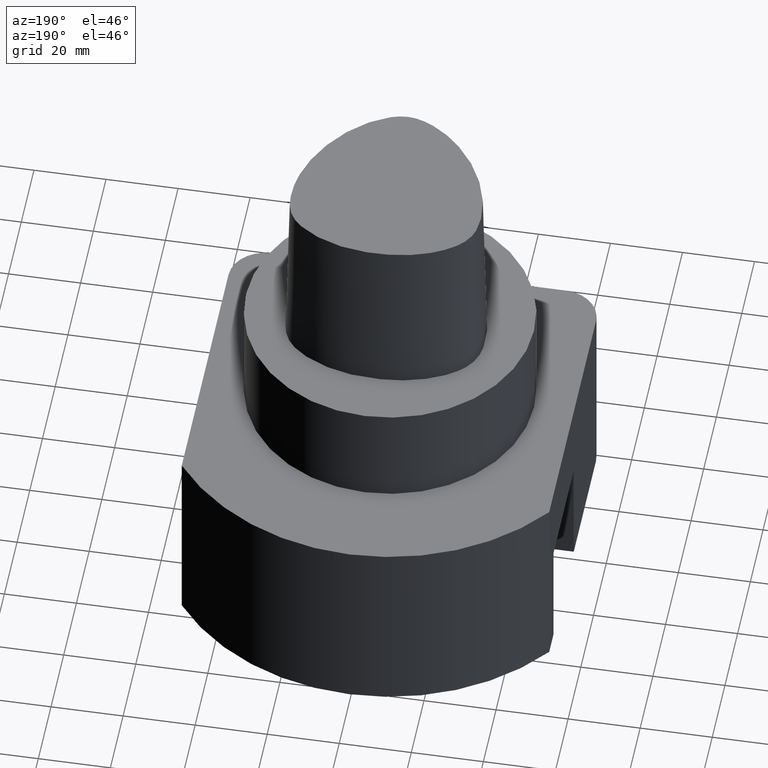
[diagram: clean part render]
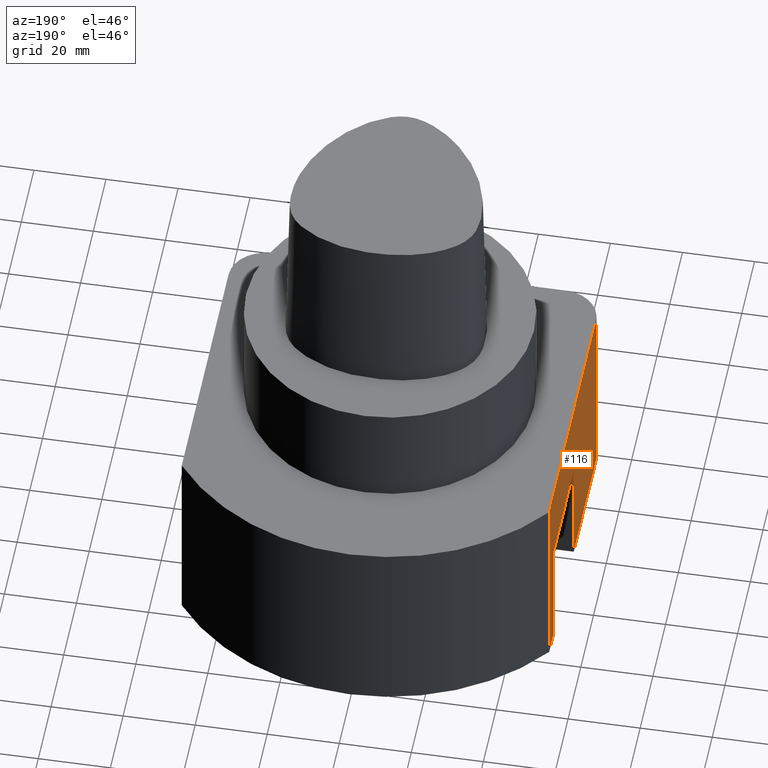
[diagram: same view with one face highlighted and labeled with its STEP entity id]
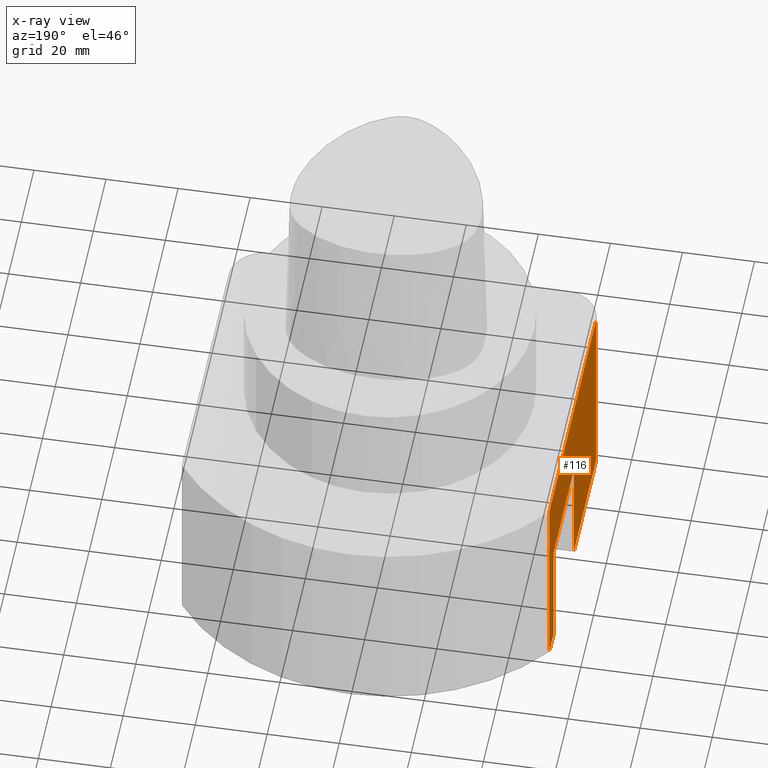
[diagram: x-ray of the same camera — body ghosted, the highlighted face saturated]
A machine part, auxiliary view. The second image highlights one B-rep face of the part: STEP entity #116.
The next image is the same camera in x-ray: the body ghosted, the highlighted face saturated — about 0% of this face is hidden behind the body in this view.
In plain terms, the highlighted planar face has unit normal (-1, 0, -0).
Its self-contained STEP definition (entity closure, byte-faithful):
#98=EDGE_CURVE('240[2]',#246,#252,#253,.T.);
#108=EDGE_CURVE('240[2]',#267,#268,#269,.T.);
#116=ADVANCED_FACE('240[2]',(#279),#280,.T.);
#123=EDGE_CURVE('240[2]',#290,#252,#291,.T.);
#127=EDGE_CURVE('240[2]',#271,#296,#297,.T.);
#150=EDGE_CURVE('240[2]',#290,#300,#331,.T.);
#204=EDGE_CURVE('240[2]',#271,#267,#396,.T.);
#206=EDGE_CURVE('240[2]',#300,#268,#398,.T.);
#208=EDGE_CURVE('240[2]',#296,#246,#400,.T.);
#246=VERTEX_POINT('',#436);
#252=VERTEX_POINT('',#444);
#253=LINE('',#445,#446);
#267=VERTEX_POINT('',#465);
#268=VERTEX_POINT('',#466);
#269=LINE('',#467,#468);
#271=VERTEX_POINT('',#471);
#279=FACE_OUTER_BOUND('',#482,.T.);
#280=PLANE('',#483);
#290=VERTEX_POINT('',#544);
#291=LINE('',#545,#546);
#296=VERTEX_POINT('',#553);
#297=LINE('',#554,#555);
#300=VERTEX_POINT('',#559);
#331=LINE('',#608,#609);
#396=LINE('',#1184,#1185);
#398=LINE('',#1188,#1189);
#400=LINE('',#1192,#1193);
#436=CARTESIAN_POINT('',(-50.9999999562171,-1.15153080469822E-015,-53.0));
#444=CARTESIAN_POINT('',(-50.9999999562171,-3.11096568333399E-015,-85.0));
#445=CARTESIAN_POINT('',(-50.9999999562171,-5.98888566133027E-015,-132.0));
#446=VECTOR('',#1220,1.0);
#465=CARTESIAN_POINT('',(-50.9999999078492,38.6652299799105,-85.0));
#466=CARTESIAN_POINT('',(-50.9999999078492,38.6652299799106,-30.0));
#467=CARTESIAN_POINT('',(-50.9999999078492,38.6652299799106,-53.0));
#468=VECTOR('',#1245,1.0);
#471=CARTESIAN_POINT('',(-50.999999916187,32.0,-85.0));
#482=EDGE_LOOP('',(#1256,#1257,#1258,#1259,#1260,#1261,#1262,#1263));
#483=AXIS2_PLACEMENT_3D('',#1264,#1265,#1266);
#544=CARTESIAN_POINT('',(-51.0,-34.99999999,-85.0));
#545=CARTESIAN_POINT('',(-51.0,-34.99999999,-85.0));
#546=VECTOR('',#1279,1.0);
#553=CARTESIAN_POINT('',(-50.999999916187,32.0,-53.0));
#554=CARTESIAN_POINT('',(-50.999999916187,32.0,-132.0));
#555=VECTOR('',#1283,1.0);
#559=CARTESIAN_POINT('',(-51.0,-34.99999999,-30.0));
#608=CARTESIAN_POINT('',(-51.0,-34.99999999,-76.0));
#609=VECTOR('',#1306,0.71875);
#1184=CARTESIAN_POINT('',(-51.0,-34.99999999,-85.0));
#1185=VECTOR('',#1385,1.0);
#1188=CARTESIAN_POINT('',(-51.0,-34.99999999,-30.0));
#1189=VECTOR('',#1386,1.0);
#1192=CARTESIAN_POINT('',(-50.9999999556085,0.486476665926136,-53.0));
#1193=VECTOR('',#1387,1.0);
#1220=DIRECTION('',(1.22464679914735E-016,-6.12323399573677E-017,-1.0));
#1245=DIRECTION('',(-1.25054175000161E-026,9.67191411602549E-016,1.0));
#1256=ORIENTED_EDGE('',*,*,#208,.T.);
#1257=ORIENTED_EDGE('',*,*,#98,.T.);
#1258=ORIENTED_EDGE('',*,*,#123,.F.);
#1259=ORIENTED_EDGE('',*,*,#150,.T.);
#1260=ORIENTED_EDGE('',*,*,#206,.T.);
#1261=ORIENTED_EDGE('',*,*,#108,.F.);
#1262=ORIENTED_EDGE('',*,*,#204,.F.);
#1263=ORIENTED_EDGE('',*,*,#127,.T.);
#1264=CARTESIAN_POINT('',(-50.99999991,36.9459065261087,-53.0));
#1265=DIRECTION('',(-1.0,1.25094011638275E-009,-1.70385641735264E-016));
#1266=DIRECTION('',(-1.70385641735264E-016,0.0,1.0));
#1279=DIRECTION('',(1.25094011638275E-009,1.0,-6.12323398041717E-017));
#1283=DIRECTION('',(-1.22464679914735E-016,6.12323399573677E-017,1.0));
#1306=DIRECTION('',(-1.25052631576651E-026,2.82200504946853E-016,1.0));
#1385=DIRECTION('',(1.25094011638275E-009,1.0,-6.12323398041717E-017));
#1386=DIRECTION('',(1.2509401301009E-009,1.0,-6.12323398041717E-017));
#1387=DIRECTION('',(-1.25094001823811E-009,-1.0,8.42911831658473E-017));